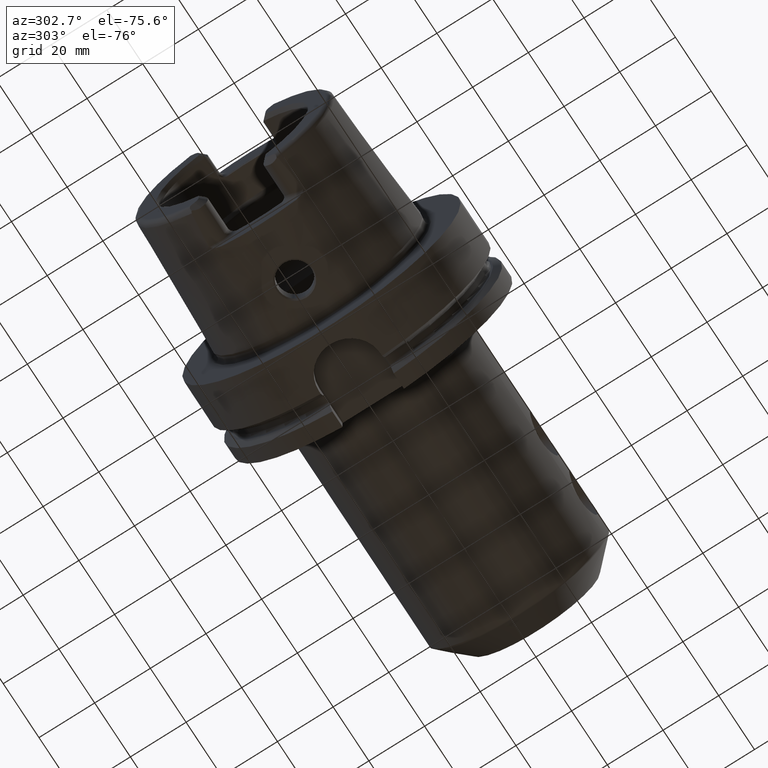
[diagram: clean part render]
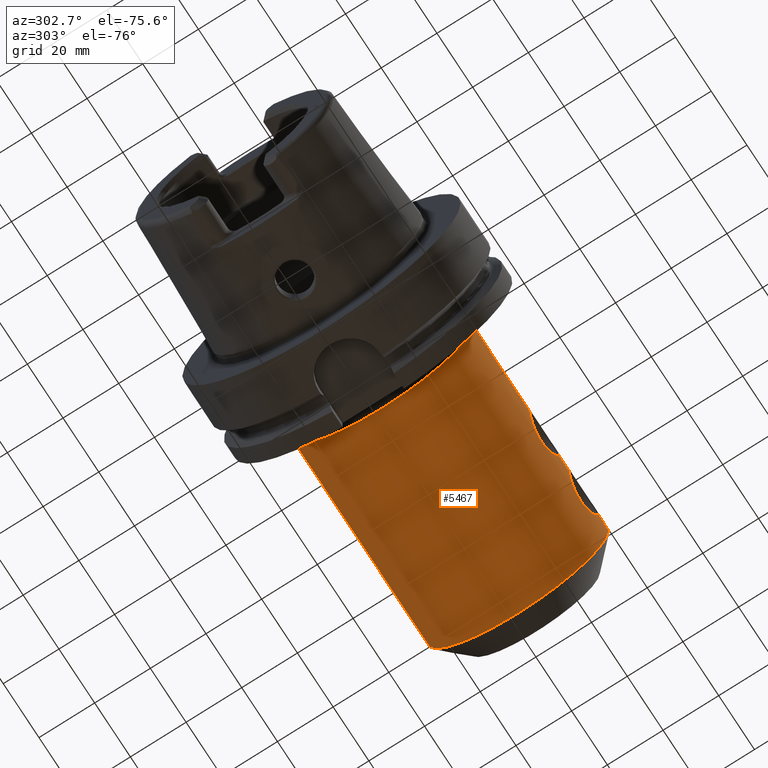
[diagram: same view with one face highlighted and labeled with its STEP entity id]
A machine part, auxiliary view. The second image highlights one B-rep face of the part: STEP entity #5467.
In plain terms, the highlighted cylindrical surface (partial cylindrical patch) has radius 32.5 mm, axis along (1, 0, 0).
Its self-contained STEP definition (entity closure, byte-faithful):
#1862=CARTESIAN_POINT('',(8.799512364561E1,-3.25E1,0.E0));
#1892=CARTESIAN_POINT('',(1.040048763544E2,-3.25E1,0.E0));
#2062=CARTESIAN_POINT('',(8.200487635439E1,-3.25E1,0.E0));
#2063=CARTESIAN_POINT('',(8.200487635439E1,-3.25E1,-2.959415151190E-1));
#2064=CARTESIAN_POINT('',(8.197192877914E1,-3.249194110354E1,
-8.829485722856E-1));
#2065=CARTESIAN_POINT('',(8.182552933702E1,-3.245653885949E1,
-1.752080452688E0));
#2066=CARTESIAN_POINT('',(8.158462200901E1,-3.239960495126E1,
-2.597615419100E0));
#2067=CARTESIAN_POINT('',(8.125129443431E1,-3.232355802097E1,
-3.413557997233E0));
#2068=CARTESIAN_POINT('',(8.082737130638E1,-3.223143505806E1,
-4.192928050983E0));
#2069=CARTESIAN_POINT('',(8.031163279677E1,-3.212638207757E1,
-4.931382772487E0));
#2070=CARTESIAN_POINT('',(7.971242307907E1,-3.201417455358E1,
-5.611167165502E0));
#2071=CARTESIAN_POINT('',(7.904211689123E1,-3.190132115662E1,
-6.218333813173E0));
#2072=CARTESIAN_POINT('',(7.830410920047E1,-3.179264811677E1,
-6.749959847089E0));
#2073=CARTESIAN_POINT('',(7.749884576531E1,-3.169303786922E1,
-7.201293419151E0));
#2074=CARTESIAN_POINT('',(7.664751299541E1,-3.160965192637E1,
-7.557254360309E0));
#2075=CARTESIAN_POINT('',(7.577348676876E1,-3.154763810258E1,
-7.810924132487E0));
#2076=CARTESIAN_POINT('',(7.488395371271E1,-3.150911723514E1,
-7.964215270179E0));
#2077=CARTESIAN_POINT('',(7.397820392119E1,-3.149563794782E1,
-8.017118416273E0));
#2078=CARTESIAN_POINT('',(7.307403738278E1,-3.150834802433E1,
-7.967243927412E0));
#2079=CARTESIAN_POINT('',(7.218895758615E1,-3.154601328081E1,
-7.817448628164E0));
#2080=CARTESIAN_POINT('',(7.132194943522E1,-3.160700587943E1,
-7.568244373165E0));
#2081=CARTESIAN_POINT('',(7.047885241214E1,-3.168927238787E1,
-7.217731516251E0));
#2082=CARTESIAN_POINT('',(6.968179886129E1,-3.178784398337E1,
-6.772401356743E0));
#2083=CARTESIAN_POINT('',(6.895055011291E1,-3.189582974312E1,
-6.246281089769E0));
#2084=CARTESIAN_POINT('',(6.828538378809E1,-3.200845579956E1,
-5.643564175255E0));
#2085=CARTESIAN_POINT('',(6.768915318262E1,-3.212103864929E1,
-4.966025508249E0));
#2086=CARTESIAN_POINT('',(6.717463983936E1,-3.222697815563E1,
-4.227165020654E0));
#2087=CARTESIAN_POINT('',(6.675053747881E1,-3.232033669213E1,
-3.444335792941E0));
#2088=CARTESIAN_POINT('',(6.641621891079E1,-3.239773772744E1,
-2.621661276519E0));
#2089=CARTESIAN_POINT('',(6.617447544919E1,-3.245579367451E1,
-1.767353919911E0));
#2090=CARTESIAN_POINT('',(6.602791171681E1,-3.249184022810E1,
-8.892800349698E-1));
#2091=CARTESIAN_POINT('',(6.599512364561E1,-3.25E1,-2.978810934608E-1));
#2092=CARTESIAN_POINT('',(6.599512364561E1,-3.25E1,0.E0));
#2094=DIRECTION('',(-1.E0,0.E0,0.E0));
#2095=VECTOR('',#2094,5.990247291219E0);
#2096=CARTESIAN_POINT('',(8.799512364561E1,-3.25E1,0.E0));
#2097=LINE('',#2096,#2095);
#2098=CARTESIAN_POINT('',(1.040048763544E2,-3.25E1,0.E0));
#2099=CARTESIAN_POINT('',(1.040048763544E2,-3.25E1,-2.959415151190E-1));
#2100=CARTESIAN_POINT('',(1.039719287791E2,-3.249194110354E1,
-8.829485722856E-1));
#2101=CARTESIAN_POINT('',(1.038255293370E2,-3.245653885949E1,
-1.752080452688E0));
#2102=CARTESIAN_POINT('',(1.035846220090E2,-3.239960495126E1,
-2.597615419100E0));
#2103=CARTESIAN_POINT('',(1.032512944343E2,-3.232355802097E1,
-3.413557997233E0));
#2104=CARTESIAN_POINT('',(1.028273713064E2,-3.223143505806E1,
-4.192928050983E0));
#2105=CARTESIAN_POINT('',(1.023116327968E2,-3.212638207757E1,
-4.931382772487E0));
#2106=CARTESIAN_POINT('',(1.017124230791E2,-3.201417455358E1,
-5.611167165502E0));
#2107=CARTESIAN_POINT('',(1.010421168912E2,-3.190132115662E1,
-6.218333813173E0));
#2108=CARTESIAN_POINT('',(1.003041092005E2,-3.179264811677E1,
-6.749959847089E0));
#2109=CARTESIAN_POINT('',(9.949884576531E1,-3.169303786922E1,
-7.201293419151E0));
#2110=CARTESIAN_POINT('',(9.864751299541E1,-3.160965192637E1,
-7.557254360309E0));
#2111=CARTESIAN_POINT('',(9.777348676876E1,-3.154763810258E1,
-7.810924132487E0));
#2112=CARTESIAN_POINT('',(9.688395371271E1,-3.150911723514E1,
-7.964215270179E0));
#2113=CARTESIAN_POINT('',(9.597820392119E1,-3.149563794782E1,
-8.017118416273E0));
#2114=CARTESIAN_POINT('',(9.507403738278E1,-3.150834802433E1,
-7.967243927412E0));
#2115=CARTESIAN_POINT('',(9.418895758615E1,-3.154601328081E1,
-7.817448628164E0));
#2116=CARTESIAN_POINT('',(9.332194943522E1,-3.160700587943E1,
-7.568244373165E0));
#2117=CARTESIAN_POINT('',(9.247885241214E1,-3.168927238787E1,
-7.217731516251E0));
#2118=CARTESIAN_POINT('',(9.168179886129E1,-3.178784398337E1,
-6.772401356743E0));
#2119=CARTESIAN_POINT('',(9.095055011291E1,-3.189582974312E1,
-6.246281089769E0));
#2120=CARTESIAN_POINT('',(9.028538378809E1,-3.200845579956E1,
-5.643564175255E0));
#2121=CARTESIAN_POINT('',(8.968915318262E1,-3.212103864929E1,
-4.966025508249E0));
#2122=CARTESIAN_POINT('',(8.917463983936E1,-3.222697815563E1,
-4.227165020654E0));
#2123=CARTESIAN_POINT('',(8.875053747881E1,-3.232033669213E1,
-3.444335792941E0));
#2124=CARTESIAN_POINT('',(8.841621891079E1,-3.239773772744E1,
-2.621661276519E0));
#2125=CARTESIAN_POINT('',(8.817447544919E1,-3.245579367451E1,
-1.767353919911E0));
#2126=CARTESIAN_POINT('',(8.802791171681E1,-3.249184022810E1,
-8.892800349698E-1));
#2127=CARTESIAN_POINT('',(8.799512364561E1,-3.25E1,-2.978810934608E-1));
#2128=CARTESIAN_POINT('',(8.799512364561E1,-3.25E1,0.E0));
#2130=DIRECTION('',(-1.E0,0.E0,0.E0));
#2131=VECTOR('',#2130,6.080910083236E0);
#2132=CARTESIAN_POINT('',(1.100857864376E2,-3.25E1,5.407769308192E-14));
#2133=LINE('',#2132,#2131);
#2134=CARTESIAN_POINT('',(1.100857864376E2,0.E0,0.E0));
#2135=DIRECTION('',(-1.E0,0.E0,0.E0));
#2136=DIRECTION('',(0.E0,1.E0,0.E0));
#2137=AXIS2_PLACEMENT_3D('',#2134,#2135,#2136);
#2139=DIRECTION('',(-1.E0,0.E0,0.E0));
#2140=VECTOR('',#2139,7.608578643763E1);
#2141=CARTESIAN_POINT('',(1.100857864376E2,3.25E1,-6.229186207718E-14));
#2142=LINE('',#2141,#2140);
#2143=CARTESIAN_POINT('',(3.4E1,0.E0,0.E0));
#2144=DIRECTION('',(1.E0,0.E0,0.E0));
#2145=DIRECTION('',(0.E0,-1.E0,0.E0));
#2146=AXIS2_PLACEMENT_3D('',#2143,#2144,#2145);
#2148=DIRECTION('',(-1.E0,0.E0,0.E0));
#2149=VECTOR('',#2148,3.199512364561E1);
#2150=CARTESIAN_POINT('',(6.599512364561E1,-3.25E1,0.E0));
#2151=LINE('',#2150,#2149);
#3445=CARTESIAN_POINT('',(3.4E1,-3.25E1,0.E0));
#3446=CARTESIAN_POINT('',(3.4E1,3.25E1,0.E0));
#3447=VERTEX_POINT('',#3445);
#3448=VERTEX_POINT('',#3446);
#3449=CARTESIAN_POINT('',(1.100857864376E2,3.25E1,-6.229186207718E-14));
#3450=VERTEX_POINT('',#3449);
#3457=CARTESIAN_POINT('',(1.100857864376E2,-3.25E1,0.E0));
#3458=VERTEX_POINT('',#3457);
#3473=VERTEX_POINT('',#1862);
#3474=VERTEX_POINT('',#1892);
#3478=CARTESIAN_POINT('',(6.599512364561E1,-3.25E1,0.E0));
#3480=VERTEX_POINT('',#3478);
#3482=CARTESIAN_POINT('',(8.200487635439E1,-3.25E1,0.E0));
#3484=VERTEX_POINT('',#3482);
#5451=CARTESIAN_POINT('',(2.445E1,0.E0,0.E0));
#5452=DIRECTION('',(1.E0,0.E0,0.E0));
#5453=DIRECTION('',(0.E0,-1.E0,0.E0));
#5454=AXIS2_PLACEMENT_3D('',#5451,#5452,#5453);
#5455=CYLINDRICAL_SURFACE('',#5454,3.25E1);
#5456=ORIENTED_EDGE('',*,*,#5377,.F.);
#5457=ORIENTED_EDGE('',*,*,#5348,.F.);
#5458=ORIENTED_EDGE('',*,*,#5443,.F.);
#5459=ORIENTED_EDGE('',*,*,#5344,.F.);
#5461=ORIENTED_EDGE('',*,*,#5460,.F.);
#5462=ORIENTED_EDGE('',*,*,#5340,.T.);
#5463=ORIENTED_EDGE('',*,*,#5310,.F.);
#5464=ORIENTED_EDGE('',*,*,#5337,.F.);
#5465=EDGE_LOOP('',(#5456,#5457,#5458,#5459,#5461,#5462,#5463,#5464));
#5466=FACE_OUTER_BOUND('',#5465,.F.);
#5467=ADVANCED_FACE('',(#5466),#5455,.T.);
#2093=B_SPLINE_CURVE_WITH_KNOTS('',3,(#2062,#2063,#2064,#2065,#2066,#2067,#2068,
#2069,#2070,#2071,#2072,#2073,#2074,#2075,#2076,#2077,#2078,#2079,#2080,#2081,
#2082,#2083,#2084,#2085,#2086,#2087,#2088,#2089,#2090,#2091,#2092),
.UNSPECIFIED.,.F.,.F.,(4,1,1,1,1,1,1,1,1,1,1,1,1,1,1,1,1,1,1,1,1,1,1,1,1,1,1,1,
4),(0.E0,3.571428571429E-2,7.142857142857E-2,1.071428571429E-1,
1.428571428571E-1,1.785714285714E-1,2.142857142857E-1,2.5E-1,2.857142857143E-1,
3.214285714286E-1,3.571428571429E-1,3.928571428571E-1,4.285714285714E-1,
4.642857142857E-1,5.E-1,5.357142857143E-1,5.714285714286E-1,6.071428571429E-1,
6.428571428571E-1,6.785714285714E-1,7.142857142857E-1,7.5E-1,7.857142857143E-1,
8.214285714286E-1,8.571428571429E-1,8.928571428571E-1,9.285714285714E-1,
9.642857142857E-1,1.E0),.UNSPECIFIED.);
#2129=B_SPLINE_CURVE_WITH_KNOTS('',3,(#2098,#2099,#2100,#2101,#2102,#2103,#2104,
#2105,#2106,#2107,#2108,#2109,#2110,#2111,#2112,#2113,#2114,#2115,#2116,#2117,
#2118,#2119,#2120,#2121,#2122,#2123,#2124,#2125,#2126,#2127,#2128),
.UNSPECIFIED.,.F.,.F.,(4,1,1,1,1,1,1,1,1,1,1,1,1,1,1,1,1,1,1,1,1,1,1,1,1,1,1,1,
4),(0.E0,3.571428571429E-2,7.142857142857E-2,1.071428571429E-1,
1.428571428571E-1,1.785714285714E-1,2.142857142857E-1,2.5E-1,2.857142857143E-1,
3.214285714286E-1,3.571428571429E-1,3.928571428571E-1,4.285714285714E-1,
4.642857142857E-1,5.E-1,5.357142857143E-1,5.714285714286E-1,6.071428571429E-1,
6.428571428571E-1,6.785714285714E-1,7.142857142857E-1,7.5E-1,7.857142857143E-1,
8.214285714286E-1,8.571428571429E-1,8.928571428571E-1,9.285714285714E-1,
9.642857142857E-1,1.E0),.UNSPECIFIED.);
#2138=CIRCLE('',#2137,3.25E1);
#2147=CIRCLE('',#2146,3.25E1);
#5310=EDGE_CURVE('',#3447,#3448,#2147,.T.);
#5337=EDGE_CURVE('',#3480,#3447,#2151,.T.);
#5340=EDGE_CURVE('',#3450,#3448,#2142,.T.);
#5344=EDGE_CURVE('',#3458,#3474,#2133,.T.);
#5348=EDGE_CURVE('',#3473,#3484,#2097,.T.);
#5377=EDGE_CURVE('',#3484,#3480,#2093,.T.);
#5443=EDGE_CURVE('',#3474,#3473,#2129,.T.);
#5460=EDGE_CURVE('',#3450,#3458,#2138,.T.);